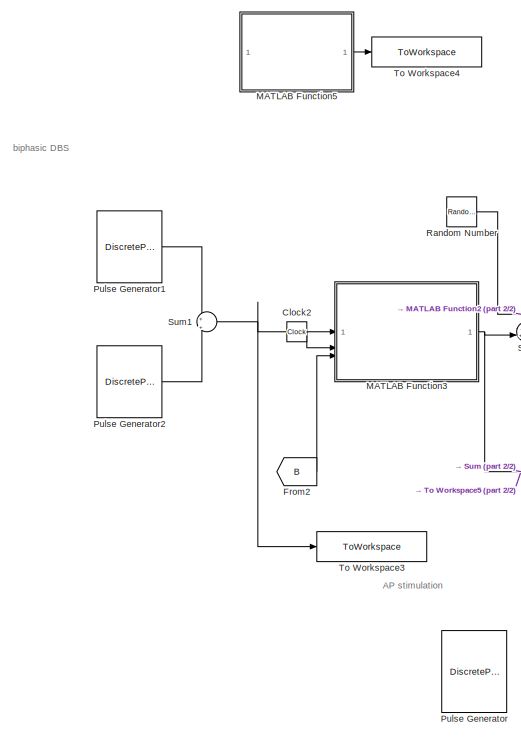
[diagram: root canvas - part 1/2, left side, full height]
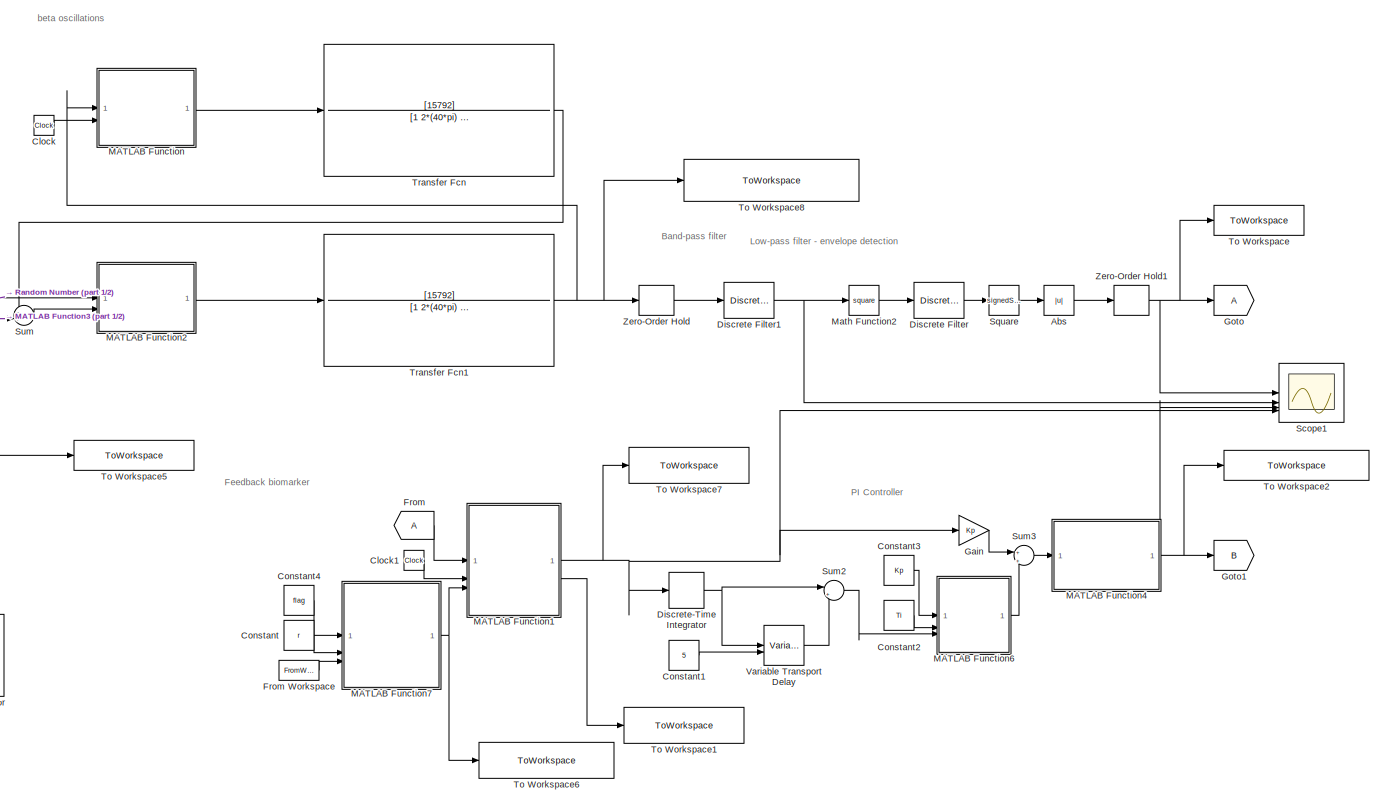
[diagram: root canvas - part 2/2, most of the canvas]
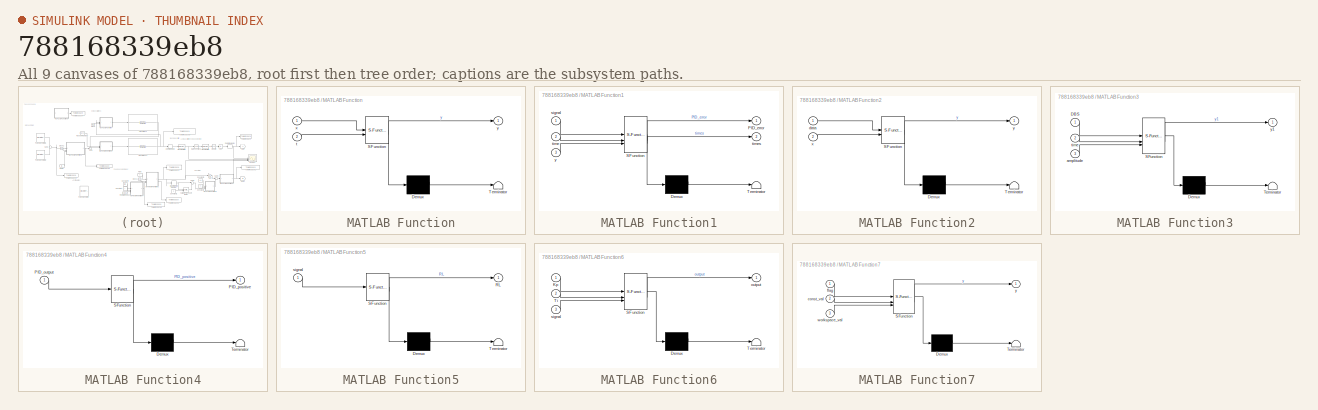
[diagram: thumbnail index - all 9 canvases of the model, root first then tree order]
MODEL slx_788168339eb8
KIND model
CONFIG AbsTol = auto
CONFIG EnableMultiTasking = off
CONFIG FixedStep = 1e-5
CONFIG MaxStep = auto
CONFIG MinStep = auto
CONFIG RelTol = 1e-3
CONFIG SampleTimeConstraint = Unconstrained
CONFIG SolverName = FixedStepAuto
CONFIG StartTime = 0.0
CONFIG StopTime = 60
WORKSPACE source: mxarray member
WORKSPACE Amp_1 = 1
WORKSPACE Amp_2 = -1
WORKSPACE flag = 0
WORKSPACE r = 0.006
BLOCK [Abs] Abs
  SaturateOnIntegerOverflow = off
BLOCK [Clock] Clock
  Decimation = 20
BLOCK [Clock] Clock1
  Decimation = 20
BLOCK [Clock] Clock2
  Decimation = 20
BLOCK [Constant] Constant
  Value = r
BLOCK [Constant] Constant1
  Value = 5
BLOCK [Constant] Constant2
  Value = Ti
BLOCK [Constant] Constant3
  Value = Kp
BLOCK [Constant] Constant4
  Value = flag
BLOCK [DiscreteFilter] Discrete Filter
  CloseFcn = dspblkCoreblockFVToolHelper(gcbh,'close');
  CopyFcn = dspblkCoreblockFVToolHelper(gcbh,'copy');
  DeleteFcn = dspblkCoreblockFVToolHelper(gcbh,'close');
  Denominator = a
  InputPortMap = u0
  LoadFcn = dspblkCoreblockFVToolHelper(gcbh,'load');
  ModelCloseFcn = dspblkCoreblockFVToolHelper(gcbh,'close');
  Numerator = b
  PostSaveFcn = dspblkCoreblockFVToolHelper(gcbh,'postsave');
  PreSaveFcn = dspblkCoreblockFVToolHelper(gcbh,'presave');
BLOCK [DiscreteFilter] Discrete Filter1
  CloseFcn = dspblkCoreblockFVToolHelper(gcbh,'close');
  CopyFcn = dspblkCoreblockFVToolHelper(gcbh,'copy');
  DeleteFcn = dspblkCoreblockFVToolHelper(gcbh,'close');
  Denominator = a1
  InputPortMap = u0
  LoadFcn = dspblkCoreblockFVToolHelper(gcbh,'load');
  ModelCloseFcn = dspblkCoreblockFVToolHelper(gcbh,'close');
  Numerator = b1
  PostSaveFcn = dspblkCoreblockFVToolHelper(gcbh,'postsave');
  PreSaveFcn = dspblkCoreblockFVToolHelper(gcbh,'presave');
BLOCK [DiscreteIntegrator] Discrete-Time Integrator
  ICPrevOutput = DiscIntNeverNeededParam
  ICPrevScaledInput = DiscIntNeverNeededParam
  InitialConditionSetting = Auto
  IntegratorMethod = Integration: Backward Euler
  SampleTime = -1
BLOCK [From] From
BLOCK [FromWorkspace] From Workspace
  VariableName = ref2
BLOCK [From] From2
  GotoTag = B
BLOCK [Gain] Gain
  Gain = Kp
BLOCK [Goto] Goto
BLOCK [Goto] Goto1
  GotoTag = B
BLOCK [SubSystem] MATLAB Function
  ErrorFcn = Stateflow.Translate.translate
  PermitHierarchicalResolution = ExplicitOnly
  SFBlockType = MATLAB Function
  TreatAsAtomicUnit = on
BLOCK [Demux] MATLAB Function/ Demux 
  Outputs = 1
BLOCK [S-Function] MATLAB Function/ SFunction 
  EnableBusSupport = off
  FunctionName = sf_sfun
  PortCounts = [2 2]
  SFcnIsStateOwnerBlock = off
  SFunctionDeploymentMode = off
  Tag = Stateflow S-Function 2
BLOCK [Terminator] MATLAB Function/ Terminator 
BLOCK [Inport] MATLAB Function/t
  Port = 2
BLOCK [Inport] MATLAB Function/x
BLOCK [Outport] MATLAB Function/y
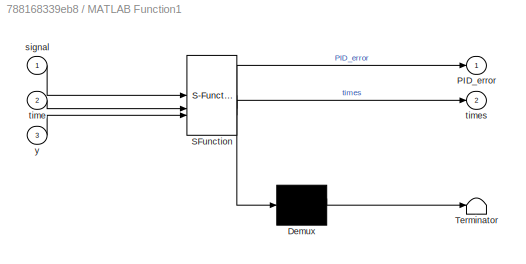
BLOCK [SubSystem] MATLAB Function1
  ErrorFcn = Stateflow.Translate.translate
  PermitHierarchicalResolution = ExplicitOnly
  SFBlockType = MATLAB Function
  TreatAsAtomicUnit = on
BLOCK [Demux] MATLAB Function1/ Demux 
  Outputs = 1
BLOCK [S-Function] MATLAB Function1/ SFunction 
  EnableBusSupport = off
  FunctionName = sf_sfun
  PortCounts = [3 3]
  SFcnIsStateOwnerBlock = off
  SFunctionDeploymentMode = off
  Tag = Stateflow S-Function 1
BLOCK [Terminator] MATLAB Function1/ Terminator 
BLOCK [Outport] MATLAB Function1/PID_error
BLOCK [Inport] MATLAB Function1/signal
BLOCK [Inport] MATLAB Function1/time
  Port = 2
BLOCK [Outport] MATLAB Function1/times
  Port = 2
BLOCK [Inport] MATLAB Function1/y
  Port = 3
BLOCK [SubSystem] MATLAB Function2
  ErrorFcn = Stateflow.Translate.translate
  PermitHierarchicalResolution = ExplicitOnly
  SFBlockType = MATLAB Function
  TreatAsAtomicUnit = on
BLOCK [Demux] MATLAB Function2/ Demux 
  Outputs = 1
BLOCK [S-Function] MATLAB Function2/ SFunction 
  EnableBusSupport = off
  FunctionName = sf_sfun
  PortCounts = [2 2]
  SFcnIsStateOwnerBlock = off
  SFunctionDeploymentMode = off
  Tag = Stateflow S-Function 3
BLOCK [Terminator] MATLAB Function2/ Terminator 
BLOCK [Inport] MATLAB Function2/data
BLOCK [Inport] MATLAB Function2/x
  Port = 2
BLOCK [Outport] MATLAB Function2/y
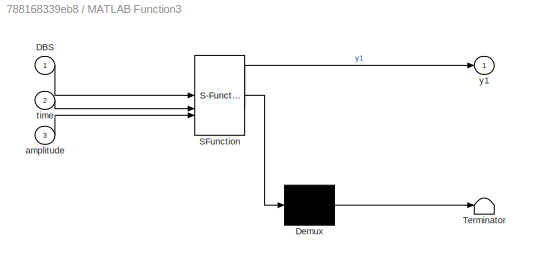
BLOCK [SubSystem] MATLAB Function3
  ErrorFcn = Stateflow.Translate.translate
  PermitHierarchicalResolution = ExplicitOnly
  SFBlockType = MATLAB Function
  TreatAsAtomicUnit = on
BLOCK [Demux] MATLAB Function3/ Demux 
  Outputs = 1
BLOCK [S-Function] MATLAB Function3/ SFunction 
  EnableBusSupport = off
  FunctionName = sf_sfun
  PortCounts = [3 2]
  SFcnIsStateOwnerBlock = off
  SFunctionDeploymentMode = off
  Tag = Stateflow S-Function 4
BLOCK [Terminator] MATLAB Function3/ Terminator 
BLOCK [Inport] MATLAB Function3/DBS
BLOCK [Inport] MATLAB Function3/amplitude
  Port = 3
BLOCK [Inport] MATLAB Function3/time
  Port = 2
BLOCK [Outport] MATLAB Function3/y1
BLOCK [SubSystem] MATLAB Function4
  ErrorFcn = Stateflow.Translate.translate
  PermitHierarchicalResolution = ExplicitOnly
  SFBlockType = MATLAB Function
  TreatAsAtomicUnit = on
BLOCK [Demux] MATLAB Function4/ Demux 
  Outputs = 1
BLOCK [S-Function] MATLAB Function4/ SFunction 
  EnableBusSupport = off
  FunctionName = sf_sfun
  PortCounts = [1 2]
  SFcnIsStateOwnerBlock = off
  SFunctionDeploymentMode = off
  Tag = Stateflow S-Function 5
BLOCK [Terminator] MATLAB Function4/ Terminator 
BLOCK [Inport] MATLAB Function4/PID_output
BLOCK [Outport] MATLAB Function4/PID_positive
BLOCK [SubSystem] MATLAB Function5
  ErrorFcn = Stateflow.Translate.translate
  PermitHierarchicalResolution = ExplicitOnly
  SFBlockType = MATLAB Function
  TreatAsAtomicUnit = on
BLOCK [Demux] MATLAB Function5/ Demux 
  Outputs = 1
BLOCK [S-Function] MATLAB Function5/ SFunction 
  EnableBusSupport = off
  FunctionName = sf_sfun
  PortCounts = [1 2]
  SFcnIsStateOwnerBlock = off
  SFunctionDeploymentMode = off
  Tag = Stateflow S-Function 6
BLOCK [Terminator] MATLAB Function5/ Terminator 
BLOCK [Outport] MATLAB Function5/RL
BLOCK [Inport] MATLAB Function5/signal
BLOCK [SubSystem] MATLAB Function6
  ErrorFcn = Stateflow.Translate.translate
  PermitHierarchicalResolution = ExplicitOnly
  SFBlockType = MATLAB Function
  TreatAsAtomicUnit = on
BLOCK [Demux] MATLAB Function6/ Demux 
  Outputs = 1
BLOCK [S-Function] MATLAB Function6/ SFunction 
  EnableBusSupport = off
  FunctionName = sf_sfun
  PortCounts = [3 2]
  SFcnIsStateOwnerBlock = off
  SFunctionDeploymentMode = off
  Tag = Stateflow S-Function 7
BLOCK [Terminator] MATLAB Function6/ Terminator 
BLOCK [Inport] MATLAB Function6/Kp
BLOCK [Inport] MATLAB Function6/Ti
  Port = 2
BLOCK [Outport] MATLAB Function6/output
BLOCK [Inport] MATLAB Function6/signal
  Port = 3
BLOCK [SubSystem] MATLAB Function7
  ErrorFcn = Stateflow.Translate.translate
  PermitHierarchicalResolution = ExplicitOnly
  SFBlockType = MATLAB Function
  TreatAsAtomicUnit = on
BLOCK [Demux] MATLAB Function7/ Demux 
  Outputs = 1
BLOCK [S-Function] MATLAB Function7/ SFunction 
  EnableBusSupport = off
  FunctionName = sf_sfun
  PortCounts = [3 2]
  SFcnIsStateOwnerBlock = off
  SFunctionDeploymentMode = off
  Tag = Stateflow S-Function 8
BLOCK [Terminator] MATLAB Function7/ Terminator 
BLOCK [Inport] MATLAB Function7/const_val
  Port = 2
BLOCK [Inport] MATLAB Function7/flag
BLOCK [Inport] MATLAB Function7/workspace_val
  Port = 3
BLOCK [Outport] MATLAB Function7/y
BLOCK [Math] Math Function2
  Operator = square
BLOCK [DiscretePulseGenerator] Pulse Generator
  Amplitude = 0.1
  Commented = on
  Period = 2e6
  PulseWidth = 2e2
  SampleTime = 1e-5
BLOCK [DiscretePulseGenerator] Pulse Generator1
  Amplitude = Amp_1
  Period = 770
  PulseWidth = 50
  SampleTime = 1e-5
BLOCK [DiscretePulseGenerator] Pulse Generator2
  Amplitude = Amp_2
  Period = 770
  PhaseDelay = 10
  PulseWidth = 50
  SampleTime = 1e-5
BLOCK [RandomNumber] Random Number
  SampleTime = 1e-5
  Variance = 1e-6
BLOCK [Scope] Scope1
  ActiveDisplayYMaximum = 0.01797
  ActiveDisplayYMinimum = -0.002
  DataLoggingVariableName = ScopeData1
  Floating = off
  GraphicalSettings = {"GraphicalSettings":{"LegacySettings":true,"Style":{"AxesScalingProperties":{"ScaleAxesLimitsAtStop":false},"Style":{"AxesColor":"[0 0 0]","ChannelNames":["Rectified Low-pass filtered Beta Oscillations","Beta Suppresion","PI output","Error signal"],"ColorOrder":"[1 0.909803921568627 0.392156862745098;0.149019607843137 0.549019607843137 0.866666666666667;0.96078431372549 0.466666666666667 0.160784...<+714ch>
  LayoutDimensionsString = [4 1]
  MultipleDisplayCache = [{"MaxYLimMag":0.01797,"MaxYLimReal":0.01797,"MinYLimMag":0,"MinYLimReal":-0.002,"PlotAsMagnitudePhase":false,"ShowGrid":true,"ShowLegend":true,"Title":"%<SignalLabel>","YLabel":""},{"MaxYLimMag":0.03865,"MaxYLimReal":0.02751,"MinYLimMag":0,"MinYLimReal":-0.02583,"PlotAsMagnitudePhase":false,"ShowGrid":true,"ShowLegend":true,"Title":"%<SignalLabel>","YLabel":""},{"MaxYLimMag":5.625,"MaxYLimReal":5...<+323ch>
  NumInputPorts = 4
  ShowLegend = on
  WasSavedAsWebScope = on
  WindowPosition = [1 49 1920 955]
BLOCK [Sqrt] Square 
  AlgorithmType = Newton-Raphson
  Operator = signedSqrt
BLOCK [Sum] Sum
  Inputs = -+|
BLOCK [Sum] Sum1
  Inputs = +|+
BLOCK [Sum] Sum2
  Inputs = |+-
BLOCK [Sum] Sum3
  Inputs = +|+
BLOCK [ToWorkspace] To Workspace
  FixptAsFi = on
  MaxDataPoints = inf
  SampleTime = -1
  VariableName = signal_data
BLOCK [ToWorkspace] To Workspace1
  FixptAsFi = on
  MaxDataPoints = inf
  SampleTime = -1
  VariableName = error_times
BLOCK [ToWorkspace] To Workspace2
  FixptAsFi = on
  MaxDataPoints = inf
  SampleTime = -1
  VariableName = PID_output_correction
BLOCK [ToWorkspace] To Workspace3
  FixptAsFi = on
  MaxDataPoints = inf
  SampleTime = -1
  VariableName = biphasicDBS
BLOCK [ToWorkspace] To Workspace4
  FixptAsFi = on
  MaxDataPoints = inf
  SampleTime = -1
  VariableName = Rate_limit
BLOCK [ToWorkspace] To Workspace5
  FixptAsFi = on
  MaxDataPoints = inf
  SampleTime = -1
  VariableName = PID_assessment
BLOCK [ToWorkspace] To Workspace6
  FixptAsFi = on
  MaxDataPoints = inf
  SampleTime = -1
  VariableName = reference_update
BLOCK [ToWorkspace] To Workspace7
  FixptAsFi = on
  MaxDataPoints = inf
  SampleTime = -1
  VariableName = error_signal
BLOCK [ToWorkspace] To Workspace8
  FixptAsFi = on
  MaxDataPoints = inf
  SampleTime = -1
  VariableName = unfiltered_model_output
BLOCK [TransferFcn] Transfer Fcn
  Denominator = [1 2*(40*pi) (40*pi)^2]
  Numerator = [15792]
BLOCK [TransferFcn] Transfer Fcn1
  Denominator = [1 2*(40*pi) (40*pi)^2]
  Numerator = [15792]
BLOCK [VariableTransportDelay] Variable Transport Delay
  FixedBuffer = on
  MaximumDelay = 10
  MaximumPoints = 1000448
BLOCK [ZeroOrderHold] Zero-Order Hold
  SampleTime = 1e-2
BLOCK [ZeroOrderHold] Zero-Order Hold1
  SampleTime = 1e-5
ANNOTATION (root): AP stimulation
ANNOTATION (root): Band-pass filter
ANNOTATION (root): Feedback biomarker
ANNOTATION (root): Low-pass filter - envelope detection
ANNOTATION (root): PI Controller
ANNOTATION (root): beta oscillations
ANNOTATION (root): biphasic DBS
LINE Abs:1 -> Zero-Order Hold1:1
LINE Clock1:1 -> MATLAB Function1:2
LINE Clock2:1 -> MATLAB Function3:2
LINE Clock:1 -> MATLAB Function:2
LINE Constant1:1 -> Variable Transport Delay:2
LINE Constant2:1 -> MATLAB Function6:2
LINE Constant3:1 -> MATLAB Function6:1
LINE Constant4:1 -> MATLAB Function7:1
LINE Constant:1 -> MATLAB Function7:2
NET Discrete Filter1:1 -> Math Function2:1, Scope1:2
LINE Discrete Filter:1 -> Square :1
NET Discrete-Time Integrator:1 -> Sum2:1, Variable Transport Delay:1
LINE From Workspace:1 -> MATLAB Function7:3
LINE From2:1 -> MATLAB Function3:3
LINE From:1 -> MATLAB Function1:1
LINE Gain:1 -> Sum3:1
NET MATLAB Function1:1 -> Discrete-Time Integrator:1, Gain:1, Scope1:4, To Workspace7:1
LINE MATLAB Function1:2 -> To Workspace1:1
LINE MATLAB Function2:1 -> Transfer Fcn1:1
NET MATLAB Function3:1 -> Sum:2, To Workspace5:1
NET MATLAB Function4:1 -> Goto1:1, Scope1:3, To Workspace2:1
LINE MATLAB Function5:1 -> To Workspace4:1
LINE MATLAB Function6:1 -> Sum3:2
NET MATLAB Function7:1 -> MATLAB Function1:3, To Workspace6:1
LINE MATLAB Function:1 -> Transfer Fcn:1
LINE Math Function2:1 -> Discrete Filter:1
LINE Pulse Generator1:1 -> Sum1:1
LINE Pulse Generator2:1 -> Sum1:2
LINE Random Number:1 -> MATLAB Function2:1
LINE Square :1 -> Abs:1
NET Sum1:1 -> MATLAB Function3:1, To Workspace3:1
LINE Sum2:1 -> MATLAB Function6:3
LINE Sum3:1 -> MATLAB Function4:1
LINE Sum:1 -> MATLAB Function2:2
NET Transfer Fcn1:1 -> MATLAB Function:1, To Workspace8:1, Zero-Order Hold:1
LINE Transfer Fcn:1 -> Sum:1
LINE Variable Transport Delay:1 -> Sum2:2
NET Zero-Order Hold1:1 -> Goto:1, Scope1:1, To Workspace:1
LINE Zero-Order Hold:1 -> Discrete Filter1:1
note: NET lines group one-source signal fan-out (src -> all destinations, sorted); 1:1 wires keep LINE
CHART MATLAB Function1 states=1 transitions=1
  STATE_LABEL 'eML_blk_kernel()'
  STATE_LABEL 'SCRIPT:\nfunction [PID_error, times] = error_times(signal, time, y)\n\n% Threshold\nthreshold = 1e-3;\n\n% Initialize times array\ntimes = zeros(1, length(signal));\n\nfor i = 1:length(signal)\n    if signal(i) > threshold\n        times(i) = time(i);\n    else\n        times(i) = 0;\n    end\nend\n\n%% Calculating controller error\n% b_target = 0.0051; % 20-th percentile of beta ARV with no DBS\n\n% b_target = r; % ...<+627ch>'
CHART MATLAB Function states=1 transitions=1
  STATE_LABEL 'eML_blk_kernel()'
  STATE_LABEL 'SCRIPT:\nfunction y = GPe_sigmoid(x,t)\n\n% % h is the sharpness parameter of the GPe sigmoid function\n% if t >= 0 && t <= 20\n%     h = 1.0;\n% elseif t >= 1.5 && t <= 2.0\n%     h = 1.0;\n% elseif t >= 3.0 && t <= 5.0\n%     h = 1.0;\n% elseif t >= 8 && t<= 15\n%     h = 1.0;\n% elseif t >= 18 && t <= 40\n%     h = 1.0;\n% elseif t >= 43 && t <= 50\n%     h = 1.0;\n% else \n%     h = 0.1;\n% end\n\n% dopamine leve...<+1358ch>'
CHART MATLAB Function2 states=1 transitions=1
  STATE_LABEL 'eML_blk_kernel()'
  STATE_LABEL "SCRIPT:\nfunction y = STN_sigmoid(data, x)\n\n% Ensure data and x are the same length\nif length(data) ~= length(x)\n    error('data and x must have the same length');\nend\n\ny = zeros(1, length(x)); % Define y with known size\n\n% dopamine levels\ng = 1.0;\n\nfor i = 1:length(x)\n    % output of GPe sigmoid function\n    y(i) = (2/pi)*atan((data(i)+x(i))/g);\nend\n\nend"
CHART MATLAB Function3 states=1 transitions=1
  STATE_LABEL 'eML_blk_kernel()'
  STATE_LABEL 'SCRIPT:\nfunction y1 = DBS_Control(DBS, time, amplitude)\n\n% DBS_amp = zeros(1, length(DBS));\n\n% %% Varying the DBS impulse on and off for different portions\n% if time <= 30\n%     DBS_amp = 0;\n% elseif time > 30\n%     DBS_amp = DBS;\n% end\n\n% % Normalize DBS waveform to have an amplitude of 1\n% normalised_DBS = DBS / max(abs(DBS));\n\n%% Implementation of PID controller output\n% Element wise multiplica...<+964ch>'
CHART MATLAB Function4 states=1 transitions=1
  STATE_LABEL 'eML_blk_kernel()'
  STATE_LABEL 'SCRIPT:\nfunction PID_positive = PID_correction(PID_output)\n\n% PID_norm = zeros(1, length(signal));\n\n% base amplitudes\n% base_amplitude = 0.5;\n\n% initialise the amplitude arrays\n% amplitude = zeros(1, length(signal));\n\nPID_positive = zeros(1, length(PID_output));\n\n% removes the negative DC offset from zero\nfor i = 1:length(PID_output)\n\n    % condition for PID output to be positive only - negative p...<+249ch>'
CHART MATLAB Function5 states=1 transitions=1
  STATE_LABEL 'eML_blk_kernel()'
  STATE_LABEL 'SCRIPT:\nfunction RL = DBS_rate_limit(signal)\n\n% Sample time\nTs = 1e-5;\nTramp = 2;\n\n% Calculate the rate limit\nRL = Ts*(5 + 5)/Tramp;\n\nend'
CHART MATLAB Function6 states=1 transitions=1
  STATE_LABEL 'eML_blk_kernel()'
  STATE_LABEL 'SCRIPT:\nfunction output = compute_Ki_signal(Kp, Ti, signal)\n    % Validate inputs\n    if Ti == 0 || Kp == 0\n        Ki = 0; % If either Ti or Kp is zero, Ki should be zero\n    else\n        Ki = Kp / Ti; % Compute Ki\n    end\n    \n    % Multiply Ki element-wise with the signal\n    output = Ki * signal;\nend\n'
CHART MATLAB Function7 states=1 transitions=1
  STATE_LABEL 'eML_blk_kernel()'
  STATE_LABEL 'SCRIPT:\nfunction y = select_r_source(flag, const_val, workspace_val)\n    if flag == 0\n        y = const_val;\n    else\n        y = workspace_val;\n    end\nend'
CHART  states=0 transitions=0
CHART  states=0 transitions=0
CHART  states=0 transitions=0
CHART  states=0 transitions=0
CHART  states=0 transitions=0
CHART  states=0 transitions=0
CHART  states=0 transitions=0
CHART  states=0 transitions=0
